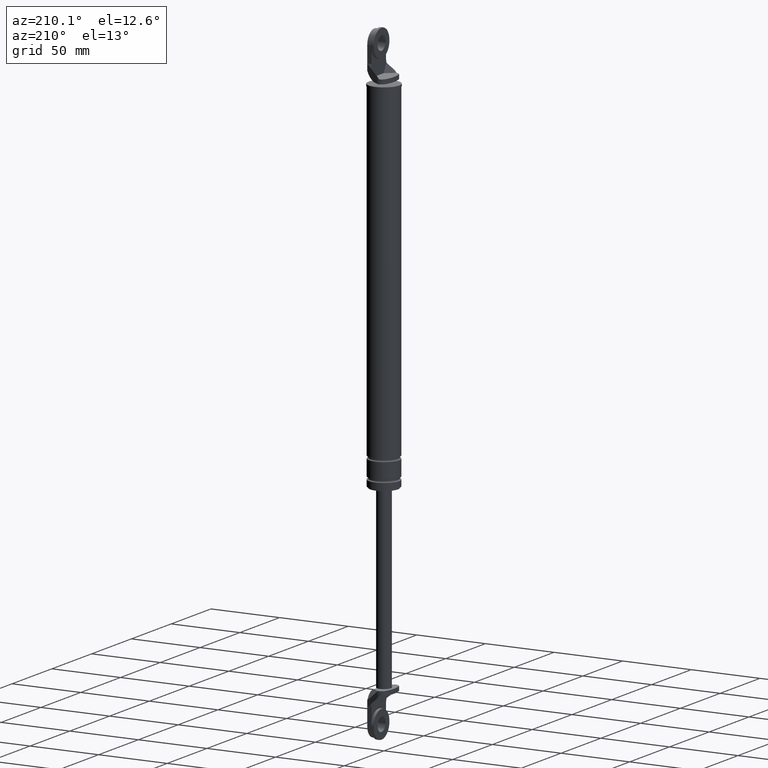
[diagram: clean part render]
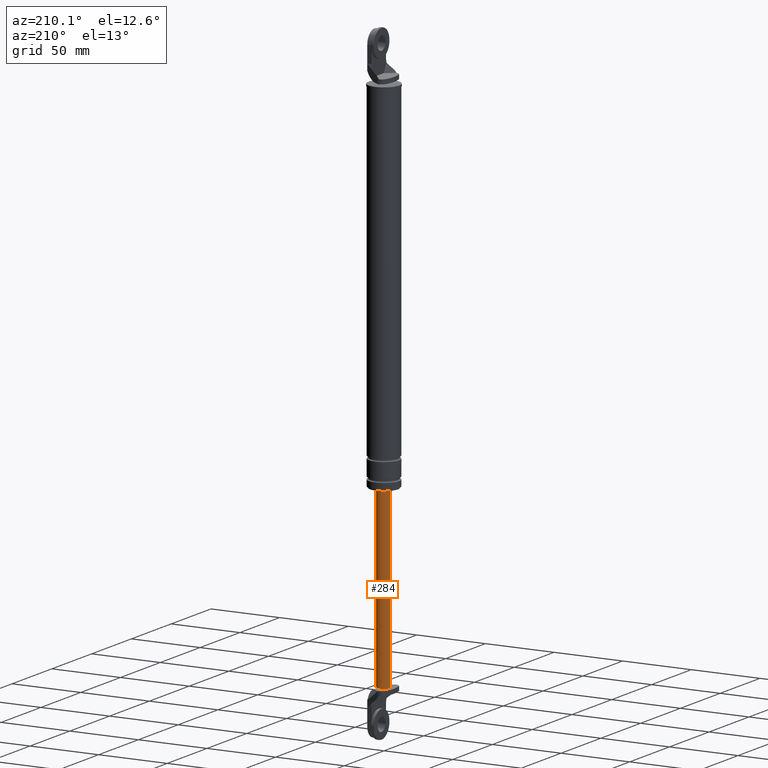
[diagram: same view with one face highlighted and labeled with its STEP entity id]
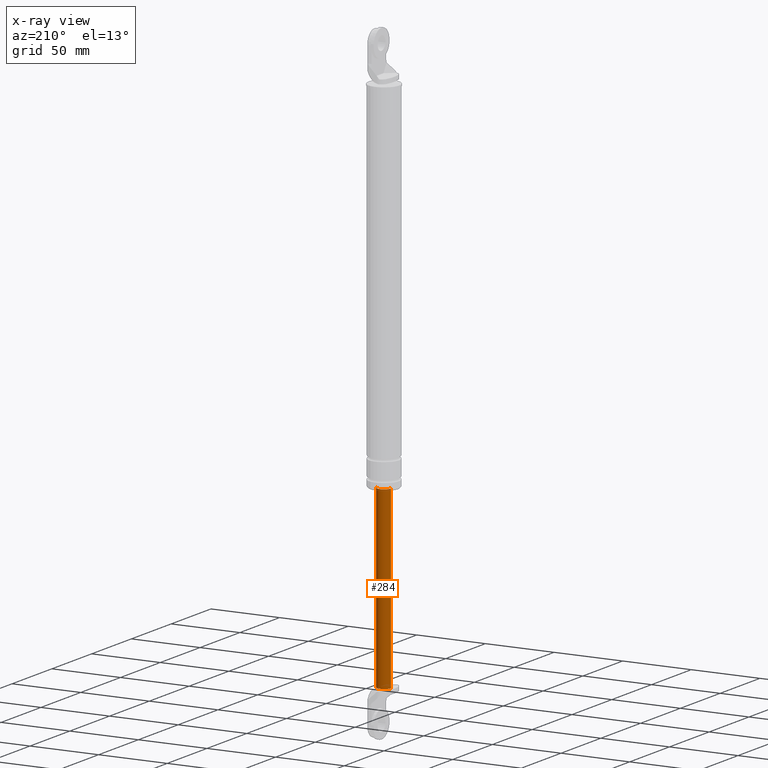
[diagram: x-ray of the same camera — body ghosted, the highlighted face saturated]
A machine part, auxiliary view. The second image highlights one B-rep face of the part: STEP entity #284.
The next image is the same camera in x-ray: the body ghosted, the highlighted face saturated — about 0% of this face is hidden behind the body in this view.
In plain terms, the highlighted cylindrical surface (edge-blend (fillet) strip) has radius 5 mm, axis along (0, 0, 1).
Its self-contained STEP definition (entity closure, byte-faithful):
#284=ADVANCED_FACE('',(#1098),#1097,.T.);
#1097=CYLINDRICAL_SURFACE('',#1757,5.00000000000E+000);
#1098=FACE_OUTER_BOUND('',#1758,.T.);
#1754=CARTESIAN_POINT('',(0.00000000000E+000,3.58204186421E-014,0.00000000000E+000));
#1755=DIRECTION('',(-0.00000000000E+000,-0.00000000000E+000,1.00000000000E+000));
#1756=DIRECTION('',(1.00000000000E+000,0.00000000000E+000,0.00000000000E+000));
#1757=AXIS2_PLACEMENT_3D('',#1754,#1755,#1756);
#1758=EDGE_LOOP('',(#2148,#2149,#2150,#2151,#2152));
#2148=ORIENTED_EDGE('',*,*,#2340,.F.);
#2149=ORIENTED_EDGE('',*,*,#2353,.F.);
#2150=ORIENTED_EDGE('',*,*,#2337,.F.);
#2151=ORIENTED_EDGE('',*,*,#2348,.F.);
#2152=ORIENTED_EDGE('',*,*,#2354,.T.);
#2337=EDGE_CURVE('',#3199,#3549,#3550,.T.);
#2340=EDGE_CURVE('',#3563,#3562,#3570,.T.);
#2348=EDGE_CURVE('',#3614,#3199,#3621,.T.);
#2353=EDGE_CURVE('',#3549,#3563,#3651,.T.);
#2354=EDGE_CURVE('',#3614,#3562,#3657,.T.);
#3199=VERTEX_POINT('',#4183);
#3549=VERTEX_POINT('',#4391);
#3550=CIRCLE('',#4395,5.00000000000E+000);
#3562=VERTEX_POINT('',#4400);
#3563=VERTEX_POINT('',#4401);
#3570=CIRCLE('',#4409,5.00000000000E+000);
#3614=VERTEX_POINT('',#4433);
#3621=CIRCLE('',#4441,5.00000000000E+000);
#3651=(BOUNDED_CURVE() B_SPLINE_CURVE(1,(#4453,#4454),.UNSPECIFIED.,.F.,.F.) B_SPLINE_CURVE_WITH_KNOTS((2,2),(6.71140940856E-002,9.32885905909E-001),.UNSPECIFIED.) CURVE() GEOMETRIC_REPRESENTATION_ITEM() RATIONAL_B_SPLINE_CURVE((1.00000000000E+000,1.00000000000E+000)) REPRESENTATION_ITEM('') );
#3657=(BOUNDED_CURVE() B_SPLINE_CURVE(1,(#4455,#4456),.UNSPECIFIED.,.F.,.F.) B_SPLINE_CURVE_WITH_KNOTS((2,2),(6.71140939597E-002,9.32885906040E-001),.UNSPECIFIED.) CURVE() GEOMETRIC_REPRESENTATION_ITEM() RATIONAL_B_SPLINE_CURVE((7.50000000000E-001,7.50000000000E-001)) REPRESENTATION_ITEM('') );
#4183=CARTESIAN_POINT('',(2.00000000000E+000,4.58257569496E+000,-3.03000015000E+002));
#4391=CARTESIAN_POINT('',(5.00000000000E+000,1.01513613779E-011,-3.03000015000E+002));
#4392=CARTESIAN_POINT('',(0.00000000000E+000,3.58204186421E-014,-3.03000015000E+002));
#4393=DIRECTION('',(0.00000000000E+000,0.00000000000E+000,-1.00000000000E+000));
#4394=DIRECTION('',(4.00000000000E-001,9.16515138991E-001,0.00000000000E+000));
#4395=AXIS2_PLACEMENT_3D('',#4392,#4393,#4394);
#4400=CARTESIAN_POINT('',(-5.00000000000E+000,3.58204186421E-014,-1.74000015000E+002));
#4401=CARTESIAN_POINT('',(5.00000000000E+000,3.61192557345E-014,-1.74000015000E+002));
#4406=CARTESIAN_POINT('',(0.00000000000E+000,3.58204186421E-014,-1.74000015000E+002));
#4407=DIRECTION('',(0.00000000000E+000,0.00000000000E+000,1.00000000000E+000));
#4408=DIRECTION('',(-1.00000000000E+000,-1.22460635382E-016,0.00000000000E+000));
#4409=AXIS2_PLACEMENT_3D('',#4406,#4407,#4408);
#4433=CARTESIAN_POINT('',(-5.00000000000E+000,8.97827335911E-007,-3.03000015000E+002));
#4438=CARTESIAN_POINT('',(0.00000000000E+000,3.58204186421E-014,-3.03000015000E+002));
#4439=DIRECTION('',(0.00000000000E+000,0.00000000000E+000,-1.00000000000E+000));
#4440=DIRECTION('',(1.00000000000E+000,-0.00000000000E+000,-0.00000000000E+000));
#4441=AXIS2_PLACEMENT_3D('',#4438,#4439,#4440);
#4453=CARTESIAN_POINT('',(5.00000000000E+000,3.58204186421E-014,-3.03000014981E+002));
#4454=CARTESIAN_POINT('',(5.00000000000E+000,3.58204186421E-014,-1.74000015020E+002));
#4455=CARTESIAN_POINT('',(-5.00000000000E+000,3.55271367880E-014,-3.03000015000E+002));
#4456=CARTESIAN_POINT('',(-5.00000000000E+000,3.55271367880E-014,-1.74000015000E+002));